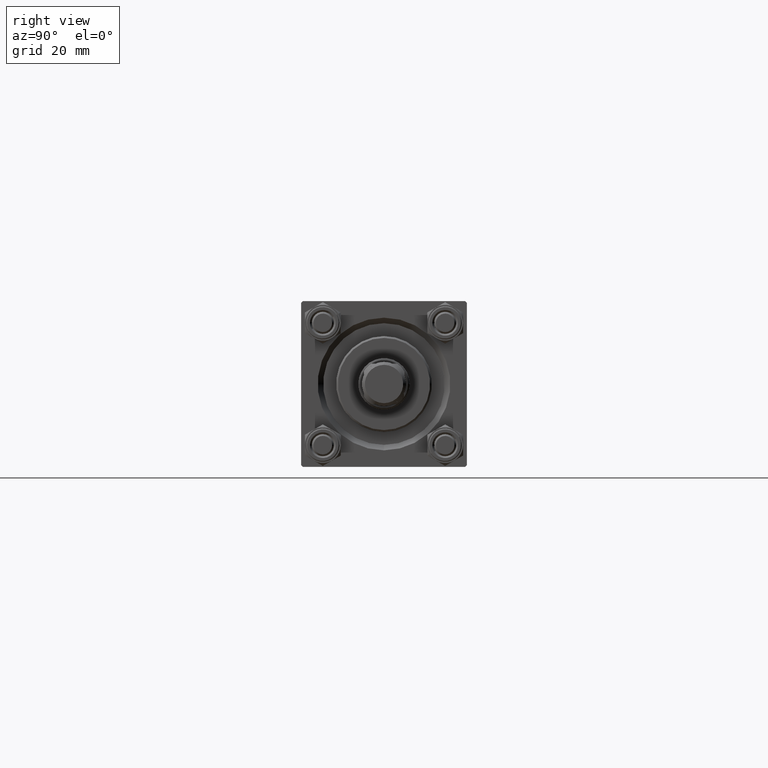
[diagram: clean part render]
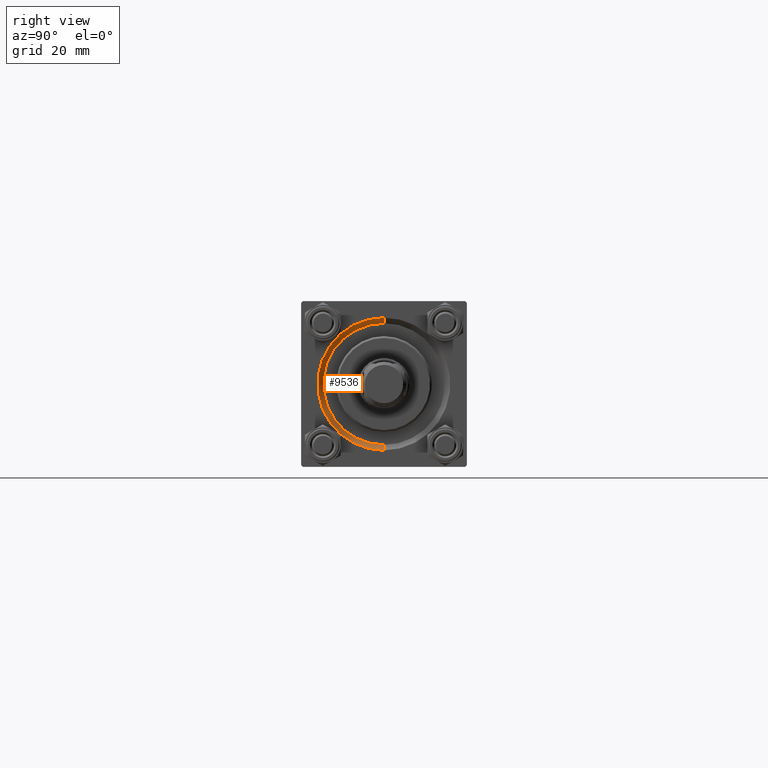
[diagram: same view with one face highlighted and labeled with its STEP entity id]
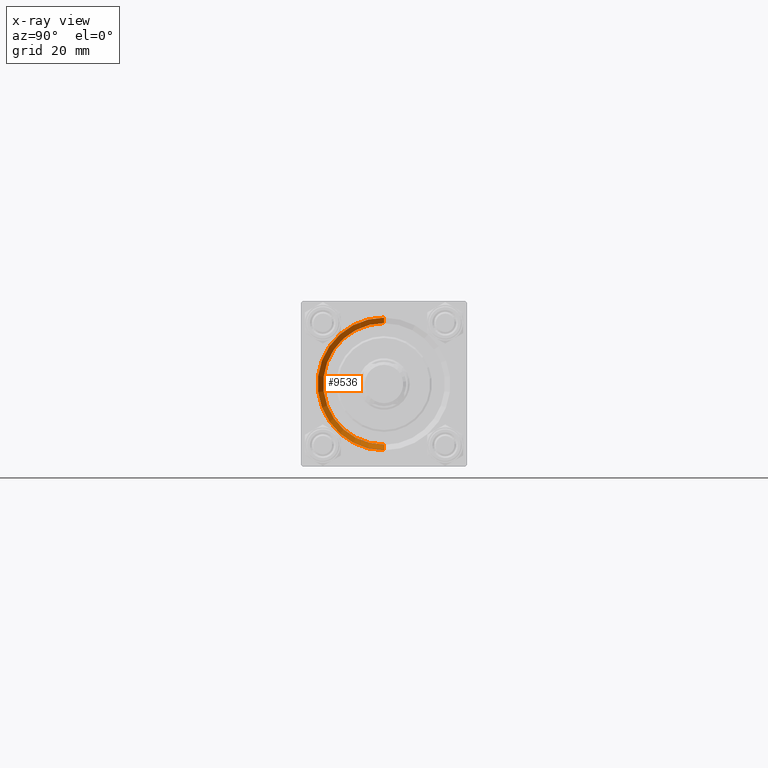
[diagram: x-ray of the same camera — body ghosted, the highlighted face saturated]
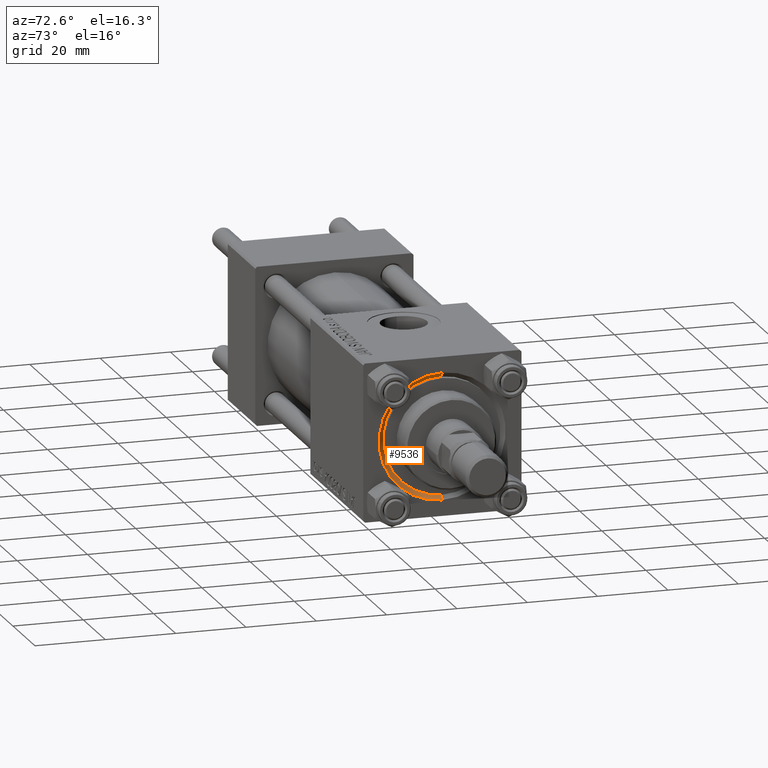
[diagram: same view with one face highlighted and labeled with its STEP entity id]
A machine part, right view. The second image highlights one B-rep face of the part: STEP entity #9536.
The next image is the same camera in x-ray: the body ghosted, the highlighted face saturated — about 0% of this face is hidden behind the body in this view.
A second angle (auxiliary view) of the same face is appended — the face is thin or edge-on in the first view.
In plain terms, the highlighted conical surface has half-angle 45 deg.
Its self-contained STEP definition (entity closure, byte-faithful):
#218 = CARTESIAN_POINT ( 'NONE',  ( 123.0000000000000142, 2.204364238465235822E-15, 18.00000000000000355 ) ) ;
#1428 = VERTEX_POINT ( 'NONE', #47096 ) ;
#2014 = CARTESIAN_POINT ( 'NONE',  ( 121.5000000000000142, 0.000000000000000000, 0.000000000000000000 ) ) ;
#5396 = CARTESIAN_POINT ( 'NONE',  ( 123.0000000000000142, 0.000000000000000000, 0.000000000000000000 ) ) ;
#8486 = DIRECTION ( 'NONE',  ( 0.7071067811865474617, 8.659560562354932858E-17, 0.7071067811865474617 ) ) ;
#9536 = ADVANCED_FACE ( 'NONE', ( #26039 ), #48054, .F. ) ;
#12951 = DIRECTION ( 'NONE',  ( 0.000000000000000000, 0.000000000000000000, 1.000000000000000000 ) ) ;
#13198 = DIRECTION ( 'NONE',  ( 0.7071067811865474617, 0.000000000000000000, -0.7071067811865474617 ) ) ;
#14803 = EDGE_CURVE ( 'NONE', #1428, #18382, #39771, .T. ) ;
#15747 = VECTOR ( 'NONE', #13198, 1000.000000000000114 ) ;
#16437 = VERTEX_POINT ( 'NONE', #32647 ) ;
#16753 = CARTESIAN_POINT ( 'NONE',  ( 121.5000000000000142, 0.000000000000000000, -16.50000000000000000 ) ) ;
#16833 = ORIENTED_EDGE ( 'NONE', *, *, #14803, .T. ) ;
#17857 = EDGE_CURVE ( 'NONE', #33805, #18382, #48167, .T. ) ;
#17922 = CARTESIAN_POINT ( 'NONE',  ( 123.0000000000000142, 0.000000000000000000, -18.00000000000000355 ) ) ;
#18382 = VERTEX_POINT ( 'NONE', #218 ) ;
#19175 = ORIENTED_EDGE ( 'NONE', *, *, #20448, .F. ) ;
#20448 = EDGE_CURVE ( 'NONE', #16437, #33805, #28194, .T. ) ;
#21928 = ORIENTED_EDGE ( 'NONE', *, *, #17857, .F. ) ;
#25385 = DIRECTION ( 'NONE',  ( 1.000000000000000000, 0.000000000000000000, 0.000000000000000000 ) ) ;
#26039 = FACE_OUTER_BOUND ( 'NONE', #40170, .T. ) ;
#27689 = VECTOR ( 'NONE', #8486, 1000.000000000000114 ) ;
#27732 = ORIENTED_EDGE ( 'NONE', *, *, #34329, .F. ) ;
#28194 = LINE ( 'NONE', #16753, #15747 ) ;
#28285 = CARTESIAN_POINT ( 'NONE',  ( 121.5000000000000142, 2.020667218593133100E-15, 16.50000000000000000 ) ) ;
#30103 = CARTESIAN_POINT ( 'NONE',  ( 121.5000000000000142, 0.000000000000000000, 0.000000000000000000 ) ) ;
#32647 = CARTESIAN_POINT ( 'NONE',  ( 121.5000000000000142, 0.000000000000000000, -16.50000000000000000 ) ) ;
#33805 = VERTEX_POINT ( 'NONE', #17922 ) ;
#34329 = EDGE_CURVE ( 'NONE', #1428, #16437, #37192, .T. ) ;
#37192 = CIRCLE ( 'NONE', #43689, 16.50000000000000000 ) ;
#37250 = DIRECTION ( 'NONE',  ( 0.000000000000000000, 0.000000000000000000, -1.000000000000000000 ) ) ;
#39190 = AXIS2_PLACEMENT_3D ( 'NONE', #5396, #48140, #44079 ) ;
#39771 = LINE ( 'NONE', #28285, #27689 ) ;
#40170 = EDGE_LOOP ( 'NONE', ( #27732, #16833, #21928, #19175 ) ) ;
#41832 = DIRECTION ( 'NONE',  ( 1.000000000000000000, 0.000000000000000000, 0.000000000000000000 ) ) ;
#43689 = AXIS2_PLACEMENT_3D ( 'NONE', #2014, #25385, #12951 ) ;
#44079 = DIRECTION ( 'NONE',  ( 0.000000000000000000, 0.000000000000000000, 1.000000000000000000 ) ) ;
#47096 = CARTESIAN_POINT ( 'NONE',  ( 121.5000000000000142, 2.020667218593133100E-15, 16.50000000000000000 ) ) ;
#48054 = CONICAL_SURFACE ( 'NONE', #48846, 16.50000000000000000, 0.7853981633974482790 ) ;
#48140 = DIRECTION ( 'NONE',  ( -1.000000000000000000, 0.000000000000000000, -0.000000000000000000 ) ) ;
#48167 = CIRCLE ( 'NONE', #39190, 18.00000000000000355 ) ;
#48846 = AXIS2_PLACEMENT_3D ( 'NONE', #30103, #41832, #37250 ) ;